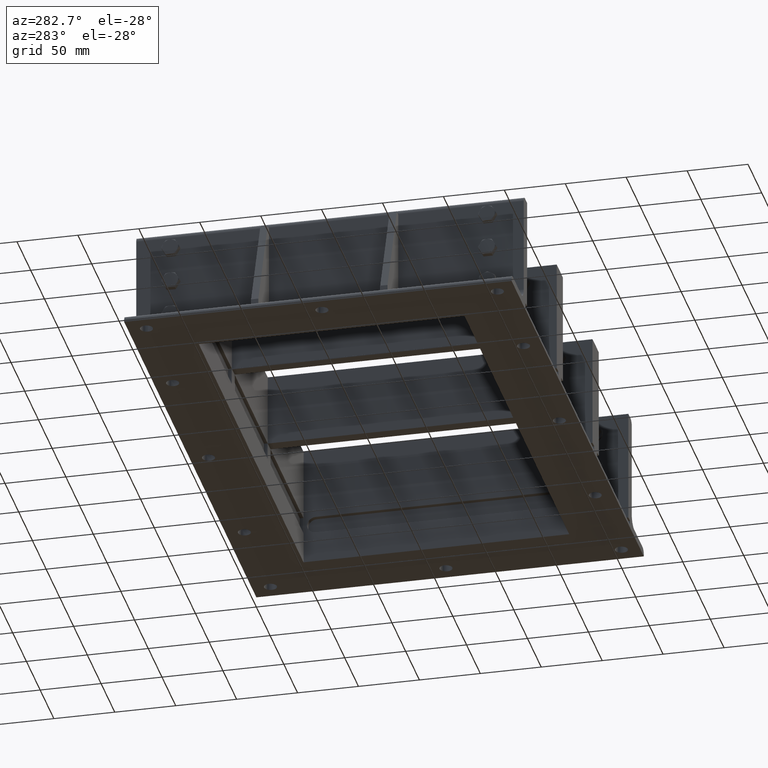
[diagram: clean part render]
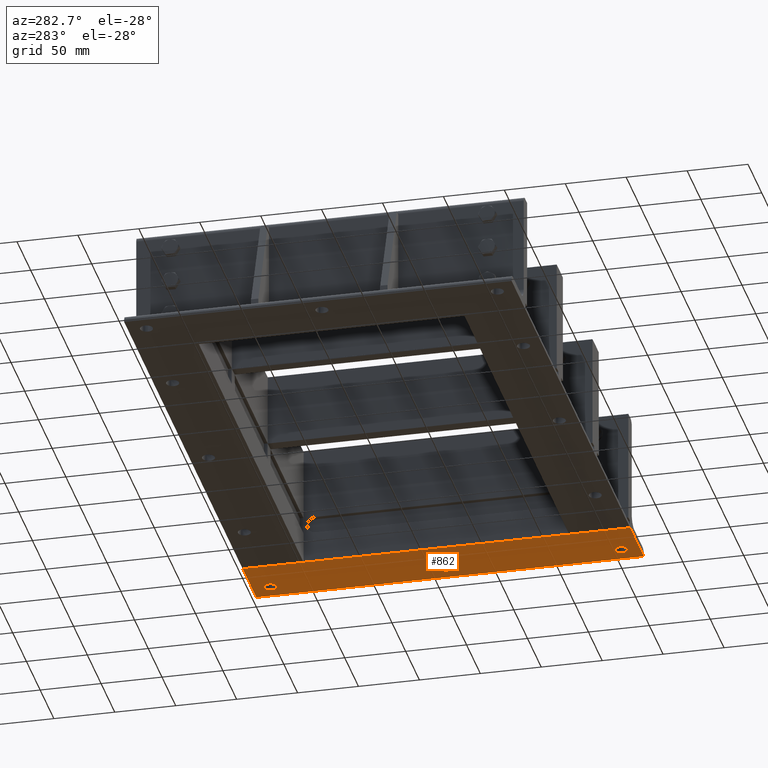
[diagram: same view with one face highlighted and labeled with its STEP entity id]
A machine part, auxiliary view. The second image highlights one B-rep face of the part: STEP entity #862.
In plain terms, the highlighted planar face has unit normal (0, 0, -1).
Its self-contained STEP definition (entity closure, byte-faithful):
#201=CARTESIAN_POINT('',(29.749999999999993,303.0,-5.491094E-015));
#202=VERTEX_POINT('',#201);
#203=CARTESIAN_POINT('',(34.999999999999993,303.0,-9.228729E-015));
#204=DIRECTION('',(0.0,0.0,1.0));
#205=DIRECTION('',(1.0,0.0,0.0));
#206=AXIS2_PLACEMENT_3D('',#203,#204,#205);
#207=CIRCLE('',#206,5.25);
#208=EDGE_CURVE('',#202,#202,#207,.T.);
#229=CARTESIAN_POINT('',(29.749999999999993,15.0,-5.491094E-015));
#230=VERTEX_POINT('',#229);
#231=CARTESIAN_POINT('',(34.999999999999993,15.0,-9.228729E-015));
#232=DIRECTION('',(0.0,0.0,1.0));
#233=DIRECTION('',(1.0,0.0,0.0));
#234=AXIS2_PLACEMENT_3D('',#231,#232,#233);
#235=CIRCLE('',#234,5.25);
#236=EDGE_CURVE('',#230,#230,#235,.T.);
#257=CARTESIAN_POINT('',(29.749999999999993,159.0,-5.491094E-015));
#258=VERTEX_POINT('',#257);
#259=CARTESIAN_POINT('',(34.999999999999993,159.0,-9.228729E-015));
#260=DIRECTION('',(0.0,0.0,1.0));
#261=DIRECTION('',(1.0,0.0,0.0));
#262=AXIS2_PLACEMENT_3D('',#259,#260,#261);
#263=CIRCLE('',#262,5.25);
#264=EDGE_CURVE('',#258,#258,#263,.T.);
#390=CARTESIAN_POINT('',(49.999999999999993,0.0,-9.228729E-015));
#391=VERTEX_POINT('',#390);
#398=CARTESIAN_POINT('',(49.999999999999993,318.0,-1.776357E-014));
#399=VERTEX_POINT('',#398);
#400=CARTESIAN_POINT('',(49.999999999999993,0.0,-9.228729E-015));
#401=DIRECTION('',(0.0,1.0,0.0));
#402=VECTOR('',#401,318.0);
#403=LINE('',#400,#402);
#404=EDGE_CURVE('',#391,#399,#403,.T.);
#448=CARTESIAN_POINT('',(0.0,0.0,0.0));
#449=VERTEX_POINT('',#448);
#456=CARTESIAN_POINT('',(0.0,0.0,0.0));
#457=DIRECTION('',(1.0,0.0,0.0));
#458=VECTOR('',#457,49.999999999999993);
#459=LINE('',#456,#458);
#460=EDGE_CURVE('',#449,#391,#459,.T.);
#830=CARTESIAN_POINT('',(49.999999999999993,0.0,-9.228729E-015));
#831=DIRECTION('',(0.0,0.0,-1.0));
#832=DIRECTION('',(-1.0,0.0,0.0));
#833=AXIS2_PLACEMENT_3D('',#830,#831,#832);
#834=PLANE('',#833);
#835=ORIENTED_EDGE('',*,*,#460,.F.);
#836=CARTESIAN_POINT('',(0.0,318.0,0.0));
#837=VERTEX_POINT('',#836);
#838=CARTESIAN_POINT('',(0.0,0.0,0.0));
#839=DIRECTION('',(0.0,1.0,0.0));
#840=VECTOR('',#839,318.0);
#841=LINE('',#838,#840);
#842=EDGE_CURVE('',#449,#837,#841,.T.);
#843=ORIENTED_EDGE('',*,*,#842,.T.);
#844=CARTESIAN_POINT('',(49.999999999999993,318.0,-9.228729E-015));
#845=DIRECTION('',(-1.0,0.0,0.0));
#846=VECTOR('',#845,49.999999999999993);
#847=LINE('',#844,#846);
#848=EDGE_CURVE('',#399,#837,#847,.T.);
#849=ORIENTED_EDGE('',*,*,#848,.F.);
#850=ORIENTED_EDGE('',*,*,#404,.F.);
#851=EDGE_LOOP('',(#835,#843,#849,#850));
#852=FACE_OUTER_BOUND('',#851,.T.);
#853=ORIENTED_EDGE('',*,*,#208,.T.);
#854=EDGE_LOOP('',(#853));
#855=FACE_BOUND('',#854,.T.);
#856=ORIENTED_EDGE('',*,*,#236,.T.);
#857=EDGE_LOOP('',(#856));
#858=FACE_BOUND('',#857,.T.);
#859=ORIENTED_EDGE('',*,*,#264,.T.);
#860=EDGE_LOOP('',(#859));
#861=FACE_BOUND('',#860,.T.);
#862=ADVANCED_FACE('',(#852,#855,#858,#861),#834,.T.);